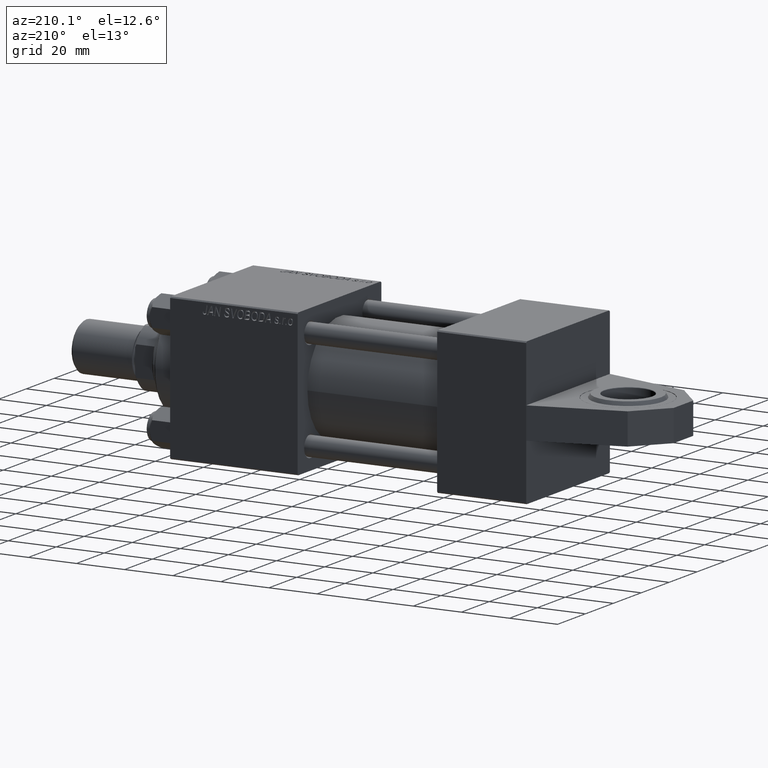
[diagram: clean part render]
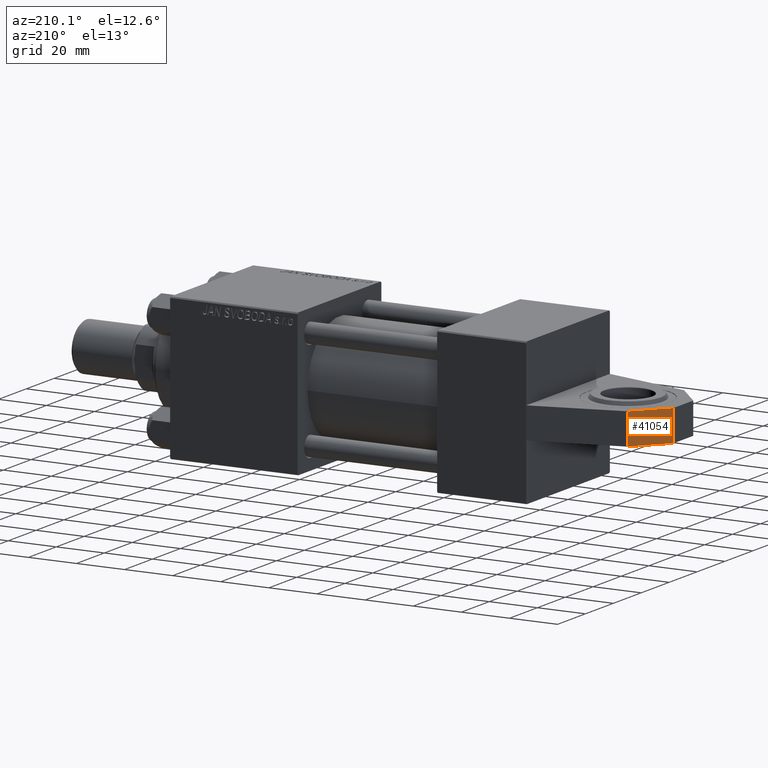
[diagram: same view with one face highlighted and labeled with its STEP entity id]
A machine part, auxiliary view. The second image highlights one B-rep face of the part: STEP entity #41054.
In plain terms, the highlighted planar face has unit normal (-0.7545, 0.6563, 0).
Its self-contained STEP definition (entity closure, byte-faithful):
#1786 = CARTESIAN_POINT ( 'NONE',  ( -48.00000000000000000, 6.500000000000000000, -7.000000000000004441 ) ) ;
#2160 = VERTEX_POINT ( 'NONE', #33977 ) ;
#3711 = CARTESIAN_POINT ( 'NONE',  ( -48.00000000000000000, -6.500000000000000000, -7.000000000000004441 ) ) ;
#5998 = EDGE_CURVE ( 'NONE', #2160, #6167, #24367, .T. ) ;
#6166 = FACE_OUTER_BOUND ( 'NONE', #18002, .T. ) ;
#6167 = VERTEX_POINT ( 'NONE', #42088 ) ;
#6914 = DIRECTION ( 'NONE',  ( -0.6563241120553992003, 0.000000000000000000, 0.7544790652726500735 ) ) ;
#6941 = VECTOR ( 'NONE', #9991, 1000.000000000000114 ) ;
#7266 = DIRECTION ( 'NONE',  ( 0.000000000000000000, 1.000000000000000000, 0.000000000000000000 ) ) ;
#9991 = DIRECTION ( 'NONE',  ( -0.6563241120553992003, -0.000000000000000000, 0.7544790652726500735 ) ) ;
#10874 = CARTESIAN_POINT ( 'NONE',  ( -36.50000000000000711, -6.500000000000000000, -20.21985447626386545 ) ) ;
#15184 = DIRECTION ( 'NONE',  ( -0.6563241120553992003, -0.000000000000000000, 0.7544790652726500735 ) ) ;
#18002 = EDGE_LOOP ( 'NONE', ( #30924, #34070, #20117, #46538 ) ) ;
#18623 = DIRECTION ( 'NONE',  ( 0.000000000000000000, 1.000000000000000000, 0.000000000000000000 ) ) ;
#20117 = ORIENTED_EDGE ( 'NONE', *, *, #28611, .T. ) ;
#20510 = CARTESIAN_POINT ( 'NONE',  ( -48.00000000000000000, -6.500000000000000000, -7.000000000000004441 ) ) ;
#22992 = VERTEX_POINT ( 'NONE', #38028 ) ;
#24363 = VECTOR ( 'NONE', #18623, 1000.000000000000000 ) ;
#24367 = LINE ( 'NONE', #1786, #6941 ) ;
#28611 = EDGE_CURVE ( 'NONE', #22992, #29673, #34467, .T. ) ;
#29285 = DIRECTION ( 'NONE',  ( -0.7544790652726500735, 0.000000000000000000, -0.6563241120553992003 ) ) ;
#29673 = VERTEX_POINT ( 'NONE', #20510 ) ;
#30924 = ORIENTED_EDGE ( 'NONE', *, *, #5998, .F. ) ;
#31109 = CARTESIAN_POINT ( 'NONE',  ( -48.00000000000000000, -6.500000000000000000, -7.000000000000004441 ) ) ;
#33977 = CARTESIAN_POINT ( 'NONE',  ( -36.50000000000000711, 6.500000000000000000, -20.21985447626386545 ) ) ;
#34070 = ORIENTED_EDGE ( 'NONE', *, *, #44269, .F. ) ;
#34467 = LINE ( 'NONE', #31109, #34888 ) ;
#34888 = VECTOR ( 'NONE', #15184, 1000.000000000000114 ) ;
#37992 = CARTESIAN_POINT ( 'NONE',  ( -48.00000000000000000, -6.500000000000000000, -7.000000000000004441 ) ) ;
#38028 = CARTESIAN_POINT ( 'NONE',  ( -36.50000000000000711, -6.500000000000000000, -20.21985447626386545 ) ) ;
#38601 = LINE ( 'NONE', #10874, #40630 ) ;
#40510 = AXIS2_PLACEMENT_3D ( 'NONE', #37992, #29285, #6914 ) ;
#40630 = VECTOR ( 'NONE', #7266, 1000.000000000000000 ) ;
#41054 = ADVANCED_FACE ( 'NONE', ( #6166 ), #41610, .T. ) ;
#41610 = PLANE ( 'NONE',  #40510 ) ;
#42088 = CARTESIAN_POINT ( 'NONE',  ( -48.00000000000000000, 6.500000000000000000, -7.000000000000004441 ) ) ;
#44269 = EDGE_CURVE ( 'NONE', #22992, #2160, #38601, .T. ) ;
#46106 = LINE ( 'NONE', #3711, #24363 ) ;
#46538 = ORIENTED_EDGE ( 'NONE', *, *, #49164, .T. ) ;
#49164 = EDGE_CURVE ( 'NONE', #29673, #6167, #46106, .T. ) ;